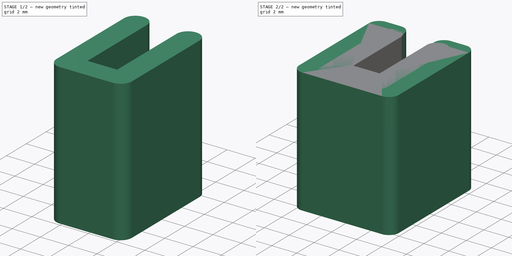
[diagram: build sequence overview — one tinted view per stage of 2, left to right]
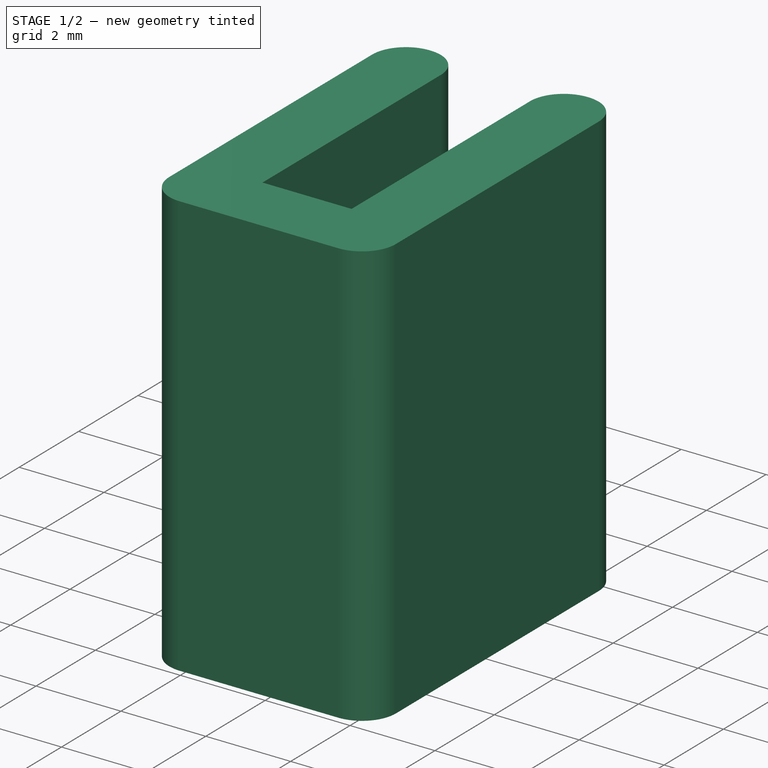
[diagram: stage 1 of 2 — iso view after this stage's code; geometry added in this stage tinted green]
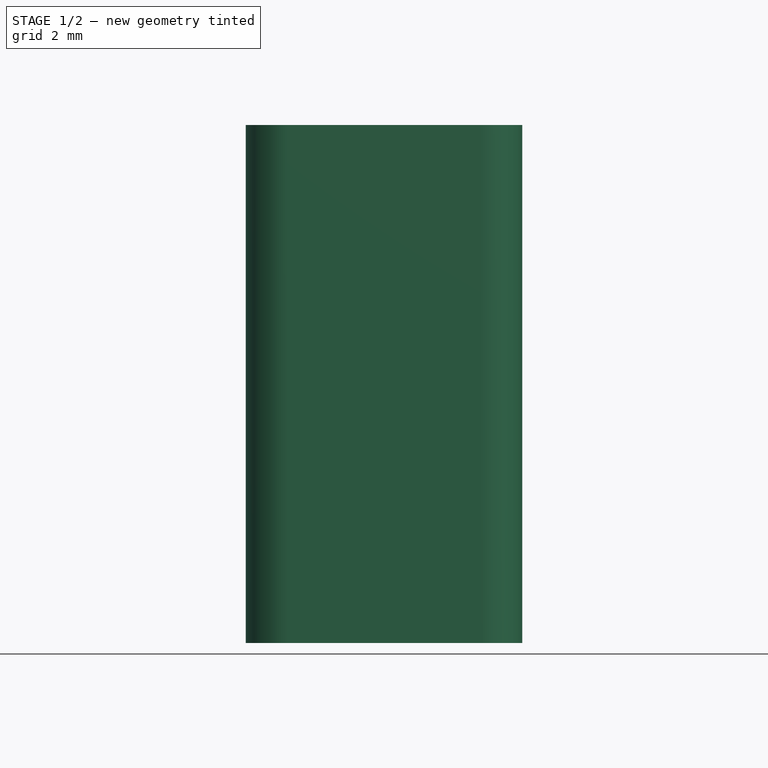
[diagram: stage 1 of 2 — front view after this stage's code; geometry added in this stage tinted green]
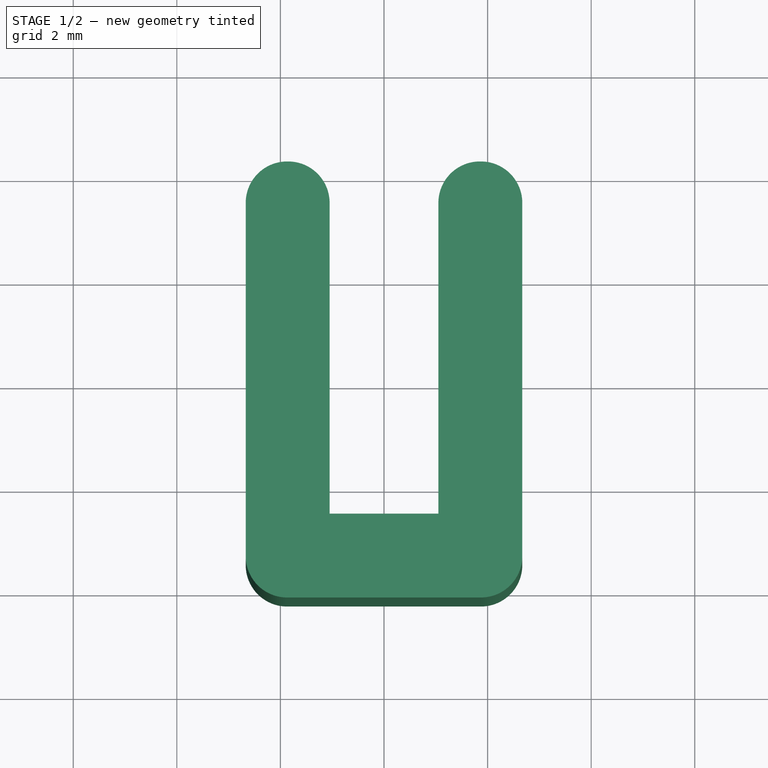
[diagram: stage 1 of 2 — top view after this stage's code; geometry added in this stage tinted green]
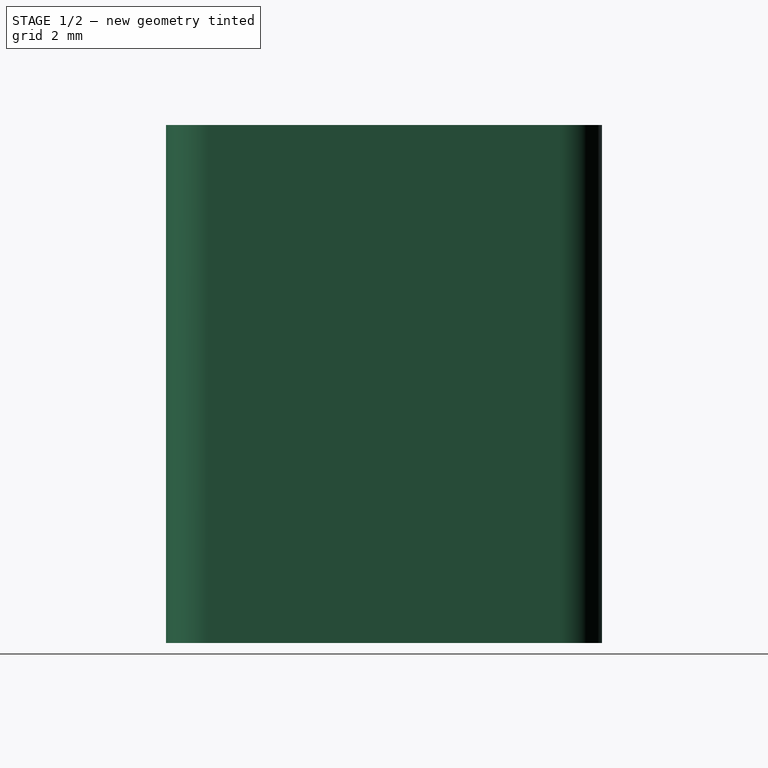
[diagram: stage 1 of 2 — right view after this stage's code; geometry added in this stage tinted green]
FCSTD DOCUMENT  (FreeCAD 0.17R13541 (Git))
Label: BeltClip
License: All rights reserved
LicenseURL: http://en.wikipedia.org/wiki/All_rights_reserved
objects: Sketcher::SketchObject×2, PartDesign::Pad×2, PartDesign::Fillet×2, PartDesign::Body×2, App::Part×2
note: 10 computed .brp shape members not serialized (recipe doc carries the construction recipe); baked Part::Feature solids carry a one-line shape summary decoded from their .brp

FEATURE [PartDesign::Body] FilletBody
  Group = -> [Sketch,Pad,Fillet]
  Origin = -> Origin001
  Tip = -> Fillet
FEATURE [App::Part] Part
  Group = -> [FilletBody]
  License = CC BY 3.0
  LicenseURL = http://creativecommons.org/licenses/by/3.0/
  Origin = -> Origin
FEATURE [Sketcher::SketchObject] Sketch001
  MapMode = 5
  Support = -> [XY_Plane002]
  sketch-geometry (8):
    g0: LineSegment StartX=-2.67 StartY=4.21 StartZ=0 EndX=-2.67 EndY=-4.21 EndZ=0
    g1: LineSegment StartX=-2.67 StartY=-4.21 StartZ=0 EndX=2.67 EndY=-4.21 EndZ=0
    g2: LineSegment StartX=2.67 StartY=-4.21 StartZ=0 EndX=2.67 EndY=4.21 EndZ=0
    g3: LineSegment StartX=2.67 StartY=4.21 StartZ=0 EndX=1.05 EndY=4.21 EndZ=0
    g4: LineSegment StartX=1.05 StartY=4.21 StartZ=0 EndX=1.05 EndY=-2.59 EndZ=0
    g5: LineSegment StartX=1.05 StartY=-2.59 StartZ=0 EndX=-1.05 EndY=-2.59 EndZ=0
    g6: LineSegment StartX=-1.05 StartY=-2.59 StartZ=0 EndX=-1.05 EndY=4.21 EndZ=0
    g7: LineSegment StartX=-1.05 StartY=4.21 StartZ=0 EndX=-2.67 EndY=4.21 EndZ=0
  constraints (23):
    c: Vertical(g0)
    c: Coincident(g0,g1)
    c: Horizontal(g1)
    c: Coincident(g1,g2)
    c: Vertical(g2)
    c: Coincident(g2,g3)
    c: Horizontal(g3)
    c: Coincident(g3,g4)
    c: Vertical(g4)
    c: Coincident(g4,g5)
    c: Horizontal(g5)
    c: Coincident(g5,g6)
    c: Vertical(g6)
    c: Coincident(g6,g7)
    c: Horizontal(g7)
    c: Coincident(g0,g7)
    c: Symmetric(g6,g3,g-2)
    c: Symmetric(g0,g2,g-2)
    c: DistanceX(g6,g3) = 2.1
    c: DistanceX(g7,g7) = 1.62
    c: DistanceY(g6,g6) = 6.8
    c: DistanceY(g0,g5) = 1.62
    c: Symmetric(g0,g0,g-1)
FEATURE [PartDesign::Pad] Pad001
  Length = 10
  Length2 = 100
  Profile = -> Sketch001
  Type = 0
FEATURE [PartDesign::Fillet] Fillet001
  Base = -> Pad001 [Edge2,Edge5,Edge8,Edge11,Edge1,Edge20]
  BaseFeature = -> Pad001
  Radius = 0.8
FEATURE [PartDesign::Body] FilletBody001
  Group = -> [Sketch001,Pad001,Fillet001]
  Origin = -> Origin002
  Tip = -> Fillet001
FEATURE [App::Part] Part001
  Group = -> [FilletBody001]
  License = CC BY 3.0
  LicenseURL = http://creativecommons.org/licenses/by/3.0/
  Origin = -> Origin003
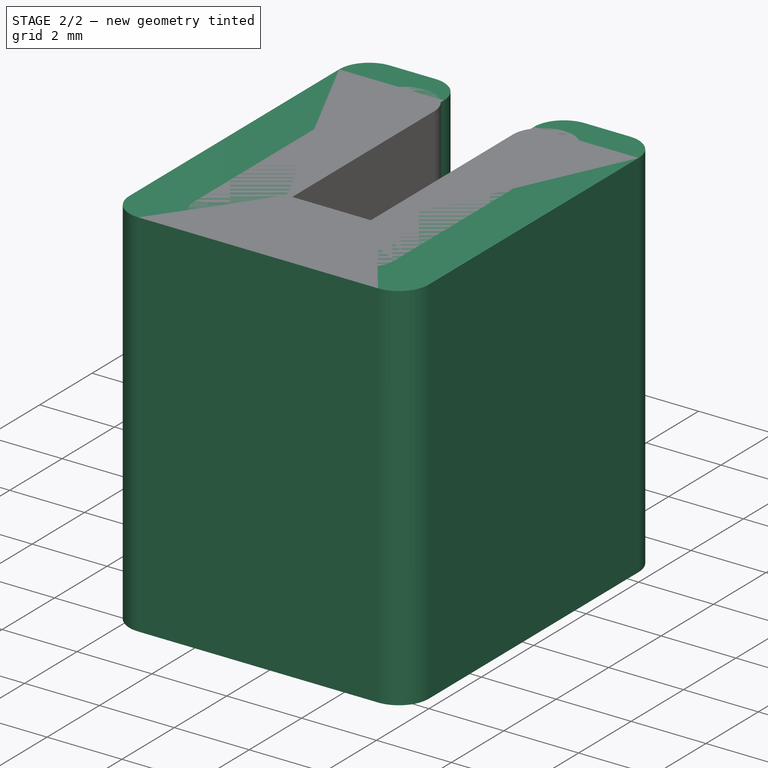
[diagram: stage 2 of 2 — iso view after this stage's code; geometry added in this stage tinted green]
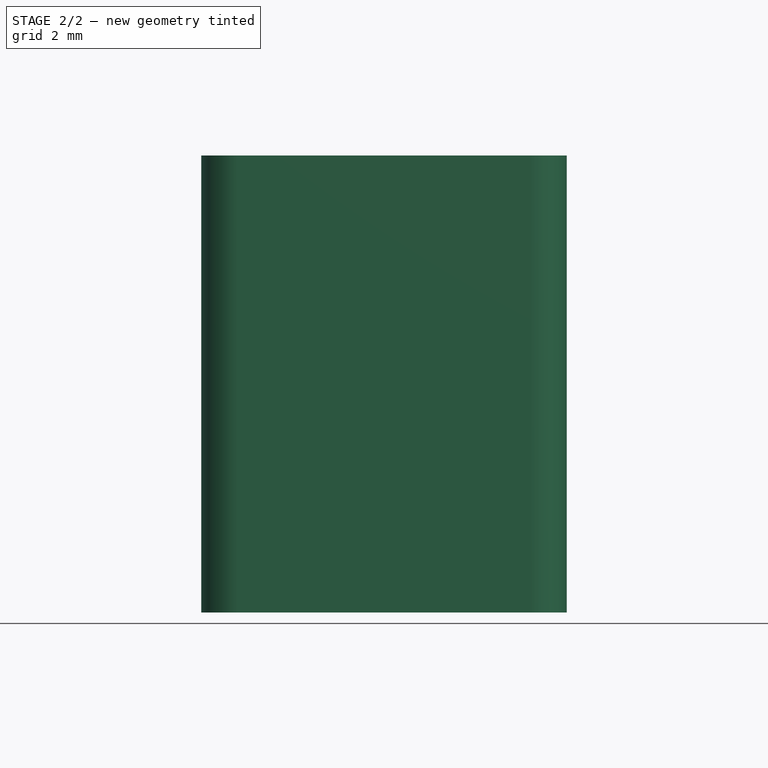
[diagram: stage 2 of 2 — front view after this stage's code; geometry added in this stage tinted green]
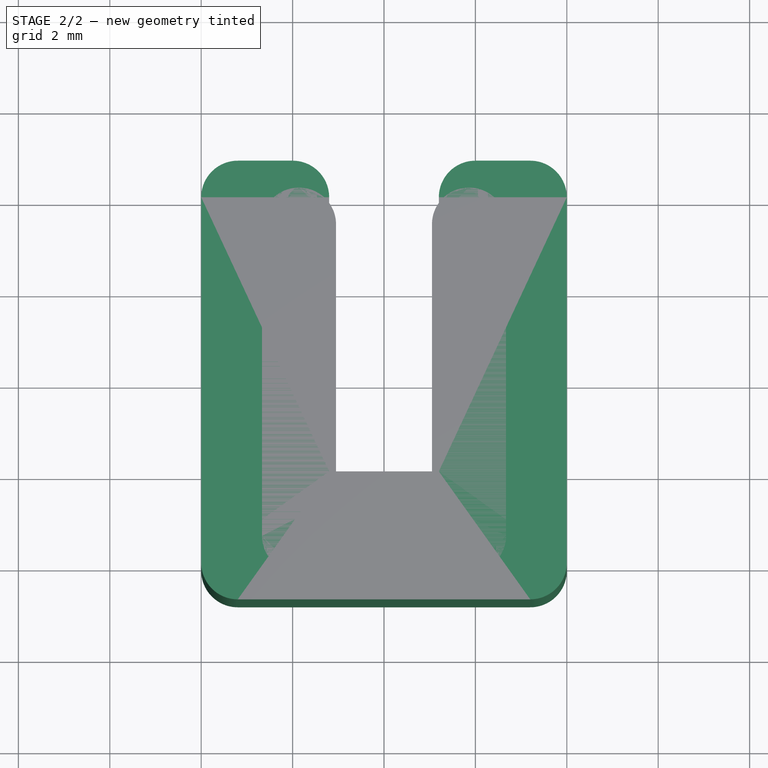
[diagram: stage 2 of 2 — top view after this stage's code; geometry added in this stage tinted green]
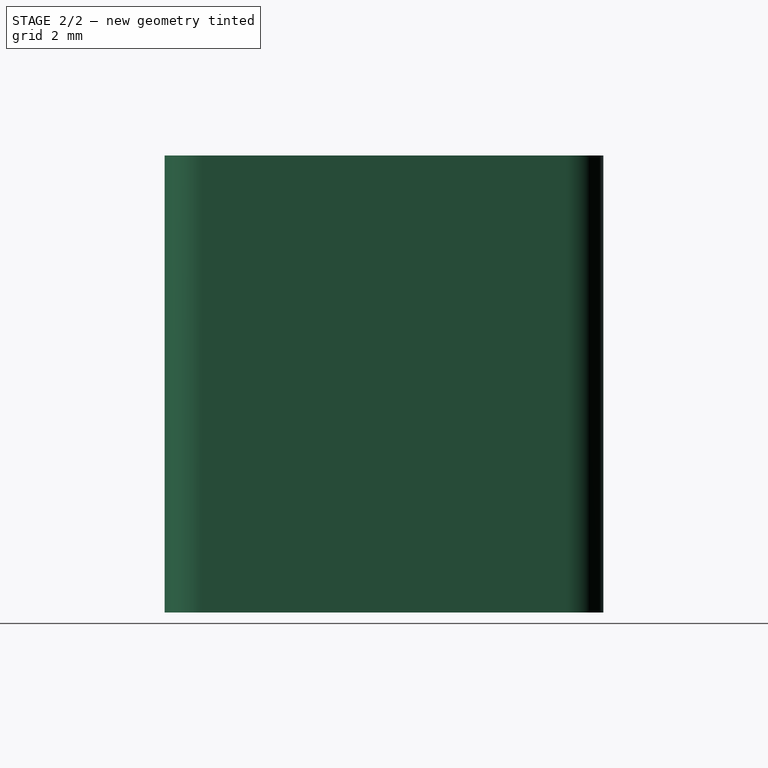
[diagram: stage 2 of 2 — right view after this stage's code; geometry added in this stage tinted green]
FEATURE [Sketcher::SketchObject] Sketch
  MapMode = 5
  Support = -> [XY_Plane001]
  sketch-geometry (8):
    g0: LineSegment StartX=-4 StartY=4.8 StartZ=0 EndX=-4 EndY=-4.8 EndZ=0
    g1: LineSegment StartX=-4 StartY=-4.8 StartZ=0 EndX=4 EndY=-4.8 EndZ=0
    g2: LineSegment StartX=4 StartY=-4.8 StartZ=0 EndX=4 EndY=4.8 EndZ=0
    g3: LineSegment StartX=4 StartY=4.8 StartZ=0 EndX=1.2 EndY=4.8 EndZ=0
    g4: LineSegment StartX=1.2 StartY=4.8 StartZ=0 EndX=1.2 EndY=-2 EndZ=0
    g5: LineSegment StartX=1.2 StartY=-2 StartZ=0 EndX=-1.2 EndY=-2 EndZ=0
    g6: LineSegment StartX=-1.2 StartY=-2 StartZ=0 EndX=-1.2 EndY=4.8 EndZ=0
    g7: LineSegment StartX=-1.2 StartY=4.8 StartZ=0 EndX=-4 EndY=4.8 EndZ=0
  constraints (23):
    c: Vertical(g0)
    c: Coincident(g0,g1)
    c: Horizontal(g1)
    c: Coincident(g1,g2)
    c: Vertical(g2)
    c: Coincident(g2,g3)
    c: Horizontal(g3)
    c: Coincident(g3,g4)
    c: Vertical(g4)
    c: Coincident(g4,g5)
    c: Horizontal(g5)
    c: Coincident(g5,g6)
    c: Vertical(g6)
    c: Coincident(g6,g7)
    c: Horizontal(g7)
    c: Coincident(g0,g7)
    c: Symmetric(g6,g3,g-2)
    c: Symmetric(g0,g2,g-2)
    c: DistanceX(g6,g3) = 2.4
    c: DistanceX(g7,g7) = 2.8
    c: DistanceY(g6,g6) = 6.8
    c: DistanceY(g0,g5) = 2.8
    c: Symmetric(g0,g0,g-1)
FEATURE [PartDesign::Pad] Pad
  Length = 10
  Length2 = 100
  Profile = -> Sketch
  Type = 0
FEATURE [PartDesign::Fillet] Fillet
  Base = -> Pad [Edge2,Edge5,Edge8,Edge11,Edge1,Edge20]
  BaseFeature = -> Pad
  Radius = 0.8
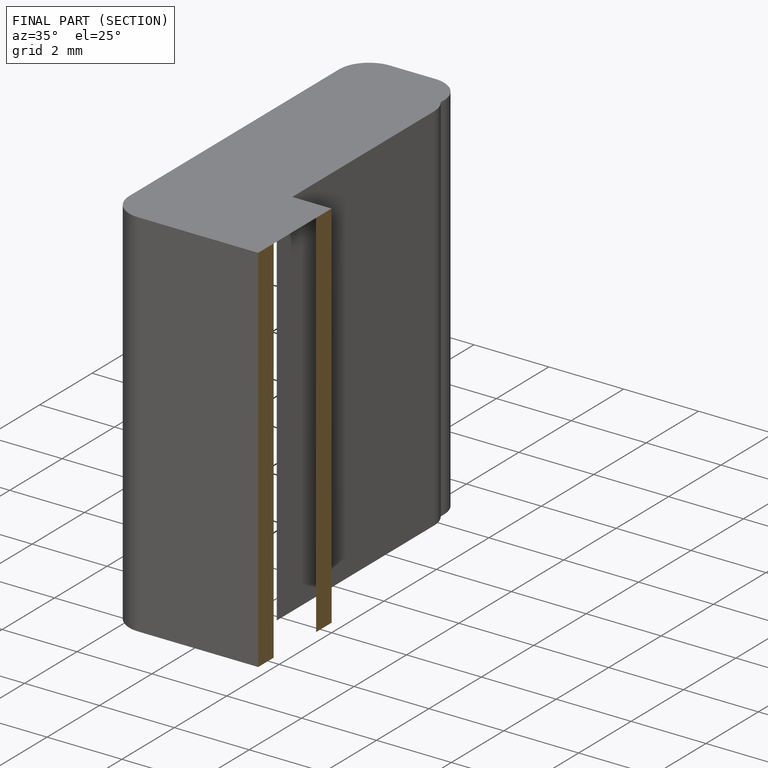
[diagram: finished part — half-section view (interior)]
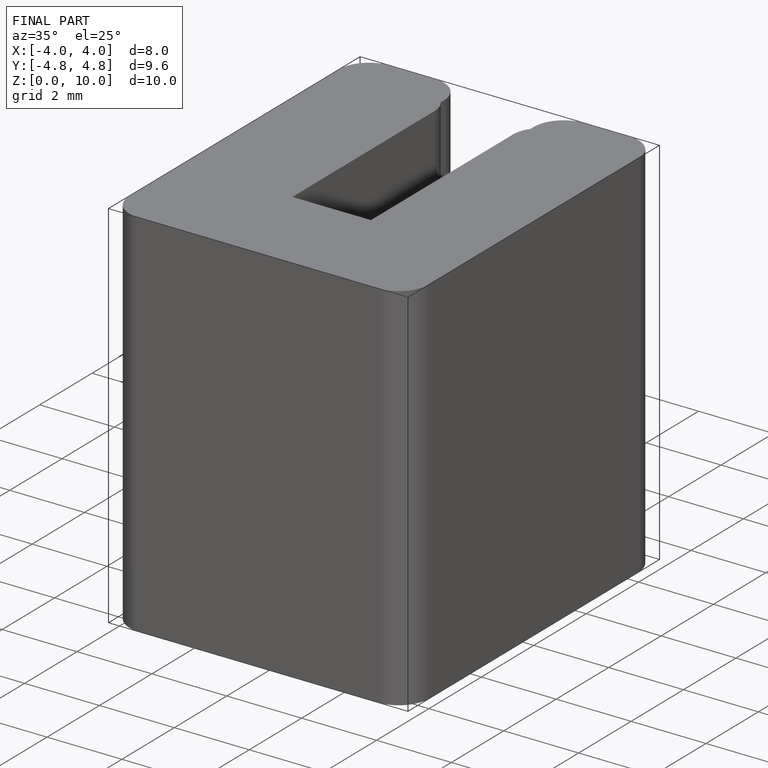
[diagram: finished part — iso view with bounding-box wireframe]
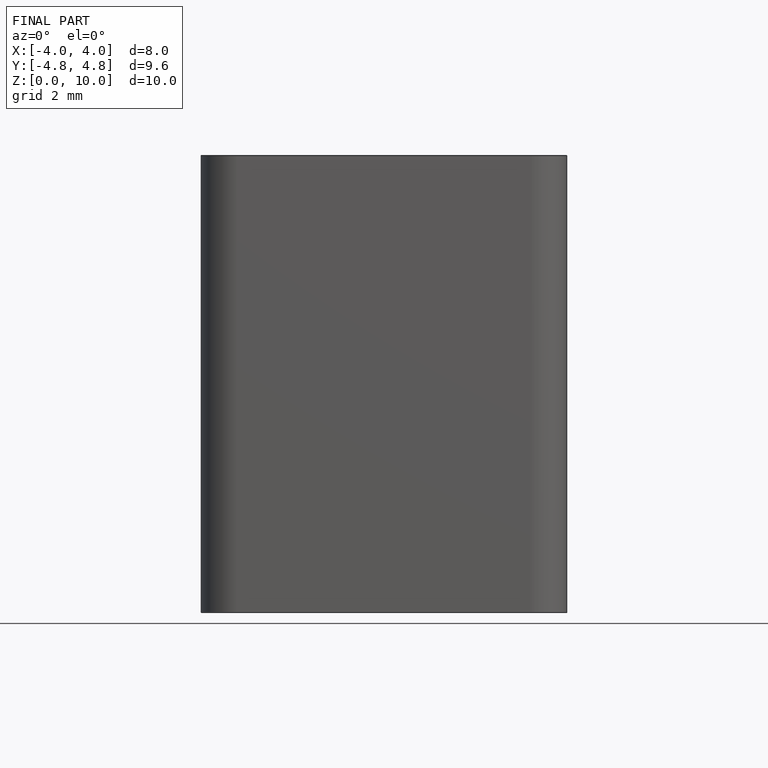
[diagram: finished part — front view with bounding-box wireframe]
